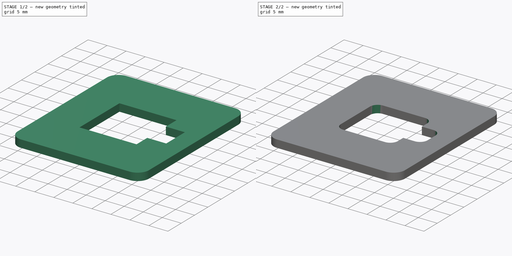
[diagram: build sequence overview — one tinted view per stage of 2, left to right]
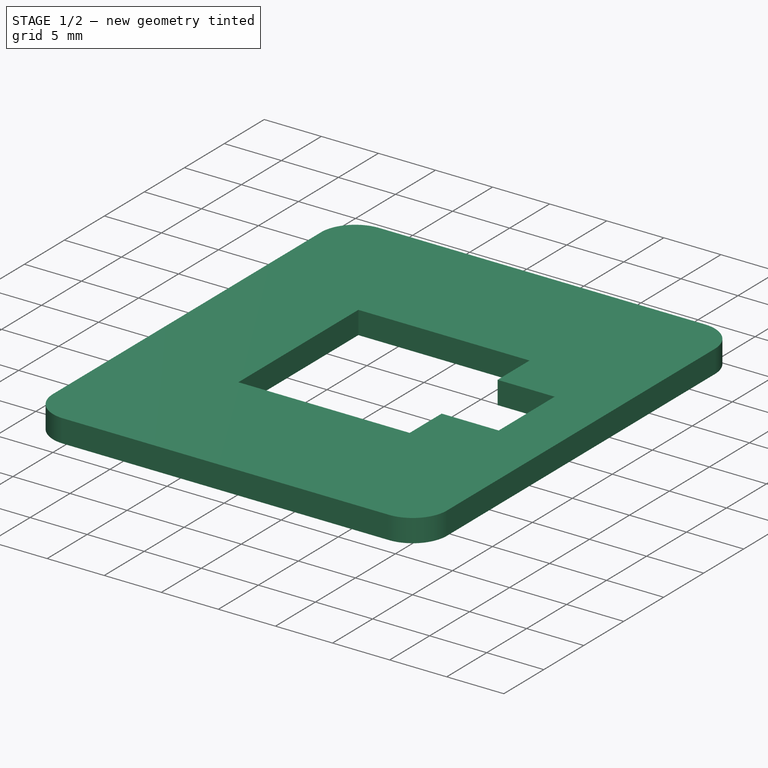
[diagram: stage 1 of 2 — iso view after this stage's code; geometry added in this stage tinted green]
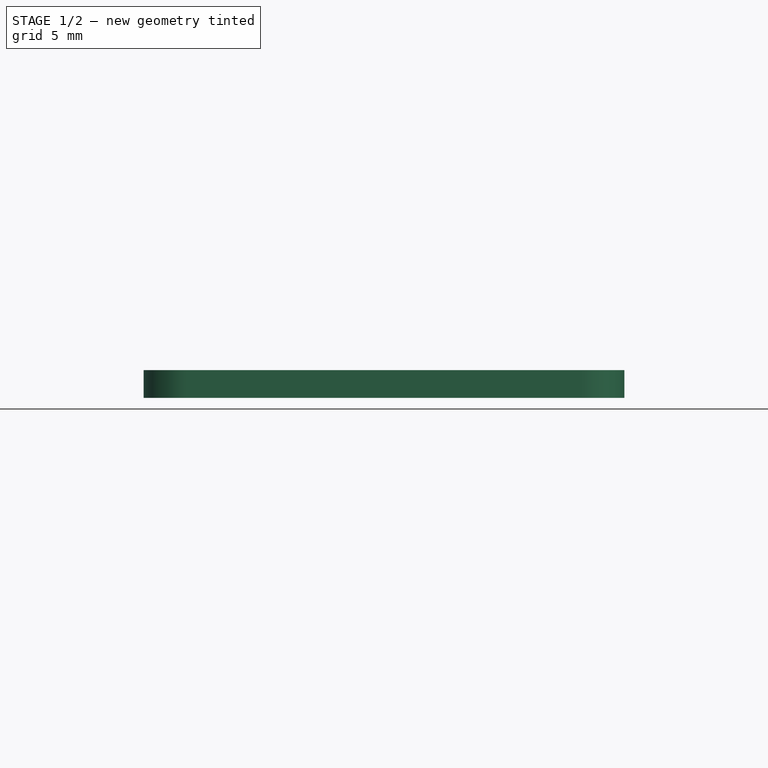
[diagram: stage 1 of 2 — front view after this stage's code; geometry added in this stage tinted green]
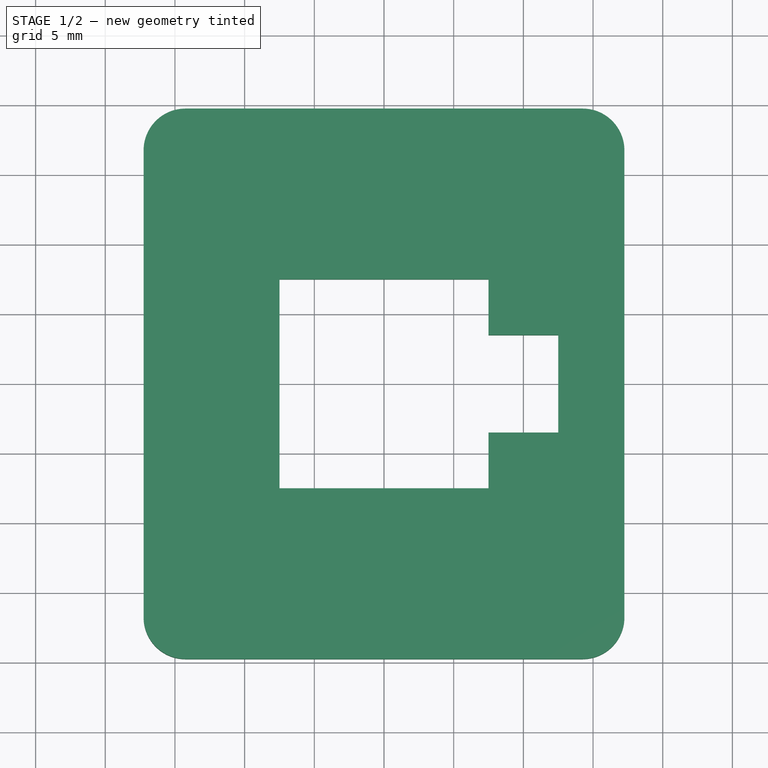
[diagram: stage 1 of 2 — top view after this stage's code; geometry added in this stage tinted green]
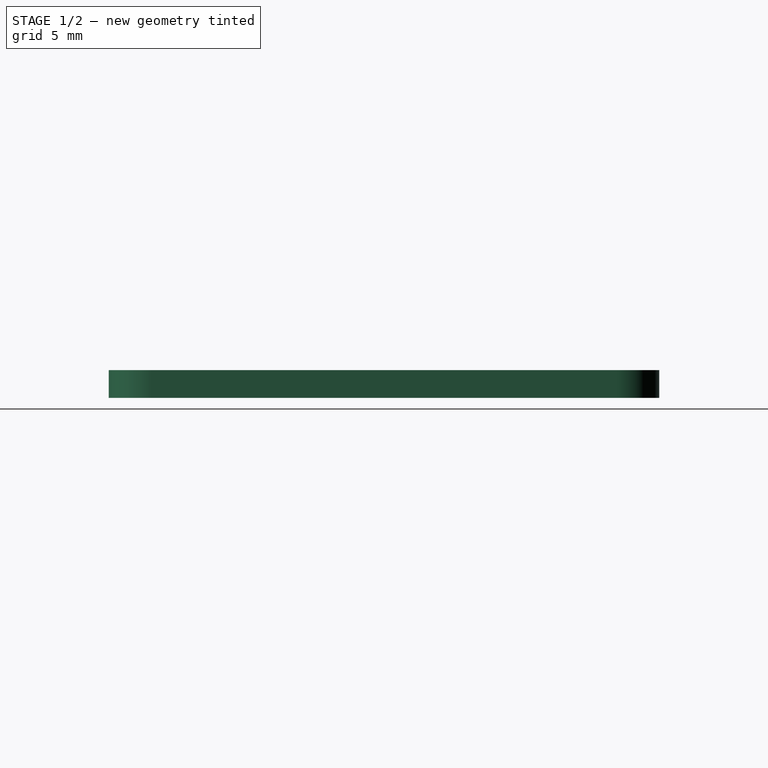
[diagram: stage 1 of 2 — right view after this stage's code; geometry added in this stage tinted green]
FCSTD DOCUMENT  (FreeCAD 0.21R33771 (Git))
Label: Spacer
License: All rights reserved
LicenseURL: http://en.wikipedia.org/wiki/All_rights_reserved
objects: Part::Fillet×2, Sketcher::SketchObject×1, Part::Extrusion×1
note: 4 computed .brp shape members not serialized (recipe doc carries the construction recipe); baked Part::Feature solids carry a one-line shape summary decoded from their .brp

FEATURE [Sketcher::SketchObject] Sketch
  FullyConstrained = true
  sketch-geometry (14):
    g0: LineSegment StartX=-17.25 StartY=-19.75 StartZ=0 EndX=-17.25 EndY=19.75 EndZ=0
    g1: LineSegment StartX=-17.25 StartY=19.75 StartZ=0 EndX=17.25 EndY=19.75 EndZ=0
    g2: LineSegment StartX=17.25 StartY=19.75 StartZ=0 EndX=17.25 EndY=-19.75 EndZ=0
    g3: LineSegment StartX=17.25 StartY=-19.75 StartZ=0 EndX=-17.25 EndY=-19.75 EndZ=0
    g4: GeomPoint X=0 Y=0 Z=0
    g5: LineSegment StartX=-7.5 StartY=-7.5 StartZ=0 EndX=-7.5 EndY=7.5 EndZ=0
    g6: LineSegment StartX=-7.5 StartY=7.5 StartZ=0 EndX=7.5 EndY=7.5 EndZ=0
    g7: LineSegment StartX=7.5 StartY=7.5 StartZ=0 EndX=7.5 EndY=3.5 EndZ=0
    g8: LineSegment StartX=7.5 StartY=-7.5 StartZ=0 EndX=-7.5 EndY=-7.5 EndZ=0
    g9: GeomPoint X=0 Y=0 Z=0
    g10: LineSegment StartX=7.5 StartY=3.5 StartZ=0 EndX=12.5 EndY=3.5 EndZ=0
    g11: LineSegment StartX=12.5 StartY=3.5 StartZ=0 EndX=12.5 EndY=-3.5 EndZ=0
    g12: LineSegment StartX=12.5 StartY=-3.5 StartZ=0 EndX=7.5 EndY=-3.5 EndZ=0
    g13: LineSegment StartX=7.5 StartY=-3.5 StartZ=0 EndX=7.5 EndY=-7.5 EndZ=0
  constraints (37):
    c: Coincident(g0,g1)
    c: Coincident(g1,g2)
    c: Coincident(g2,g3)
    c: Coincident(g3,g0)
    c: Horizontal(g1)
    c: Horizontal(g3)
    c: Vertical(g0)
    c: Vertical(g2)
    c: Symmetric(g1,g0,g4)
    c: PointOnObject(g4,g-2)
    c: Coincident(g5,g6)
    c: Coincident(g6,g7)
    c: Coincident(g13,g8)
    c: Coincident(g8,g5)
    c: Horizontal(g6)
    c: Horizontal(g8)
    c: Vertical(g5)
    c: Vertical(g7)
    c: Symmetric(g6,g5,g9)
    c: Coincident(g9,g-1)
    c: Distance(g1) = 34.5
    c: Distance(g2) = 39.5
    c: PointOnObject(g4,g-1)
    c: Horizontal(g10)
    c: Coincident(g11,g10)
    c: Vertical(g11)
    c: Coincident(g12,g11)
    c: Horizontal(g12)
    c: Coincident(g7,g10)
    c: Coincident(g13,g12)
    c: Distance(g6) = 15
    c: Distance(g5) = 15
    c: Distance(g8) = 15
    c: Vertical(g13)
    c: Equal(g7,g13)
    c: Distance(g7) = 4
    c: Distance(g12) = 5
FEATURE [Part::Extrusion] Extrude
  Base = -> Sketch
  Dir = (0,0,1)
  DirMode = 2
  FaceMakerClass = Part::FaceMakerBullseye
  LengthFwd = 2
  LengthRev = 0
  Solid = true
  Symmetric = false
FEATURE [Part::Fillet] Fillet
  Base = -> Extrude
  Edges = 4 edges r=3: [Edge1,Edge2,Edge5,Edge8]
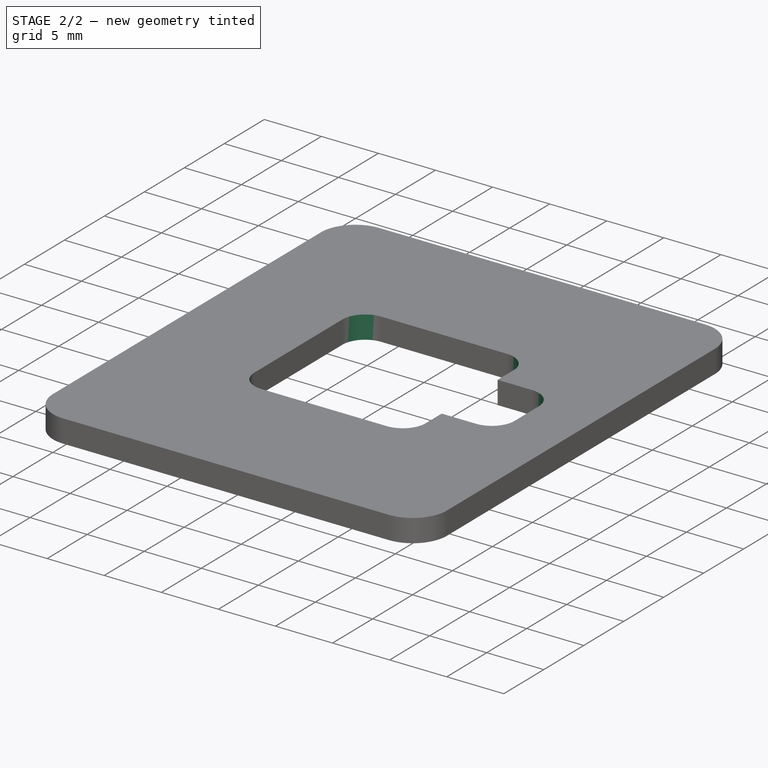
[diagram: stage 2 of 2 — iso view after this stage's code; geometry added in this stage tinted green]
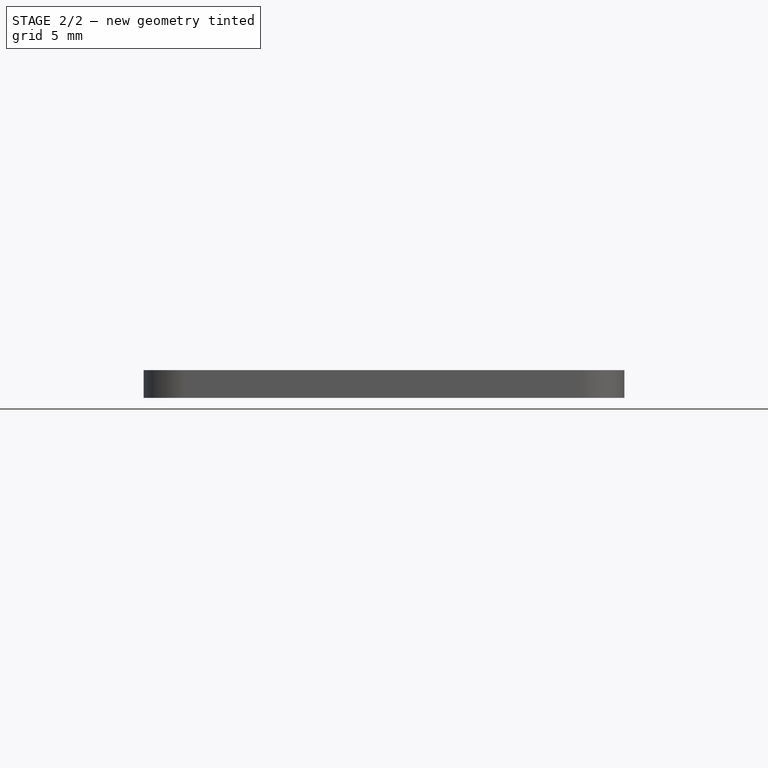
[diagram: stage 2 of 2 — front view after this stage's code; geometry added in this stage tinted green]
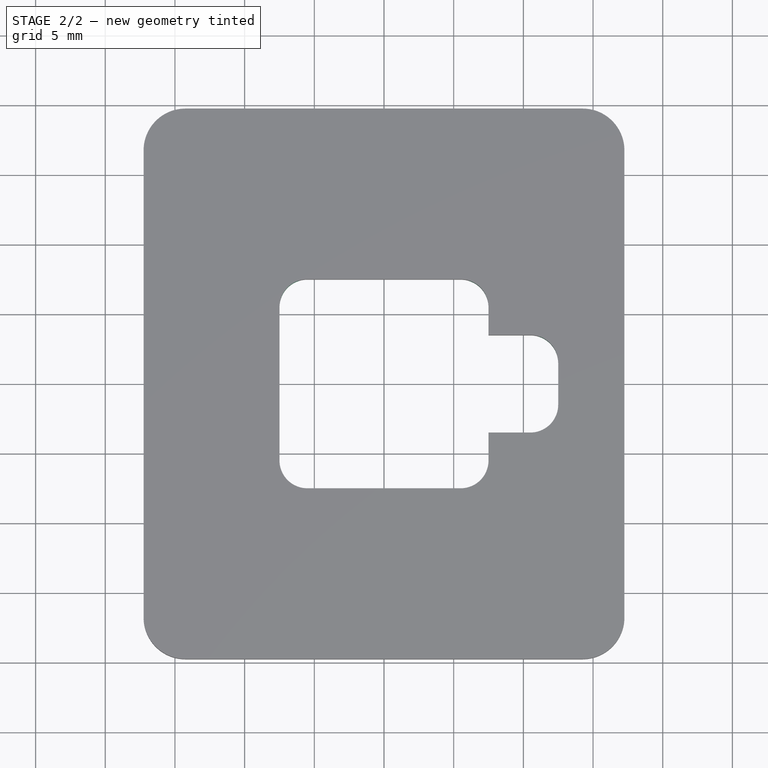
[diagram: stage 2 of 2 — top view after this stage's code; geometry added in this stage tinted green]
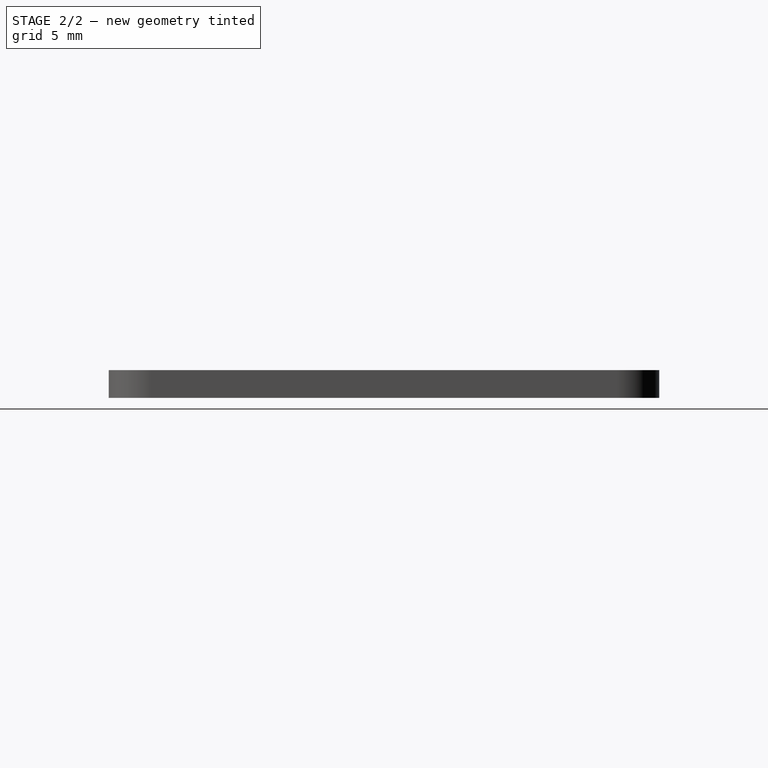
[diagram: stage 2 of 2 — right view after this stage's code; geometry added in this stage tinted green]
FEATURE [Part::Fillet] Fillet001
  Base = -> Fillet
  Edges = 6 edges r=2: [Edge41,Edge42,Edge43,Edge45,Edge46,Edge48]
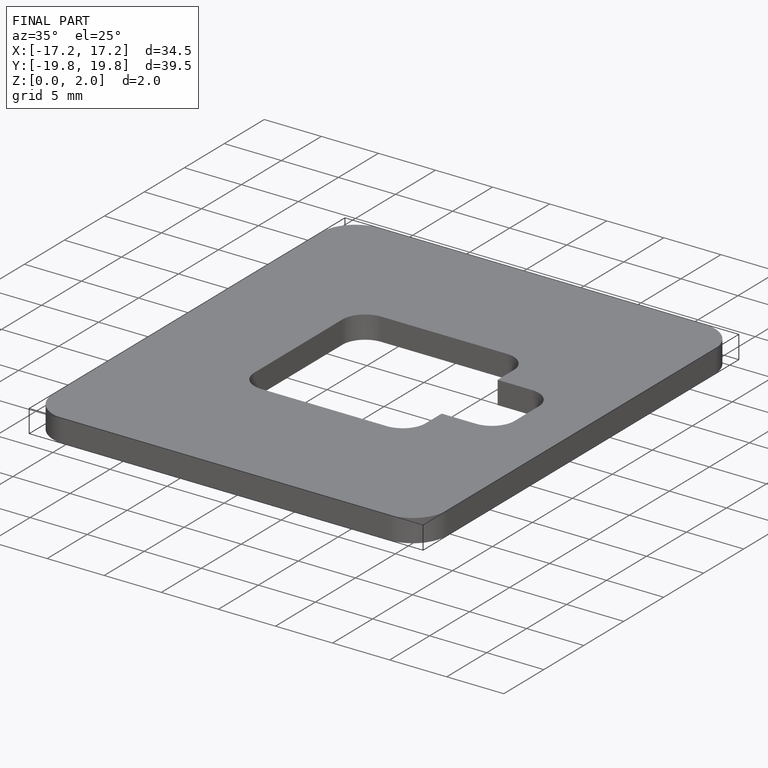
[diagram: finished part — iso view with bounding-box wireframe]
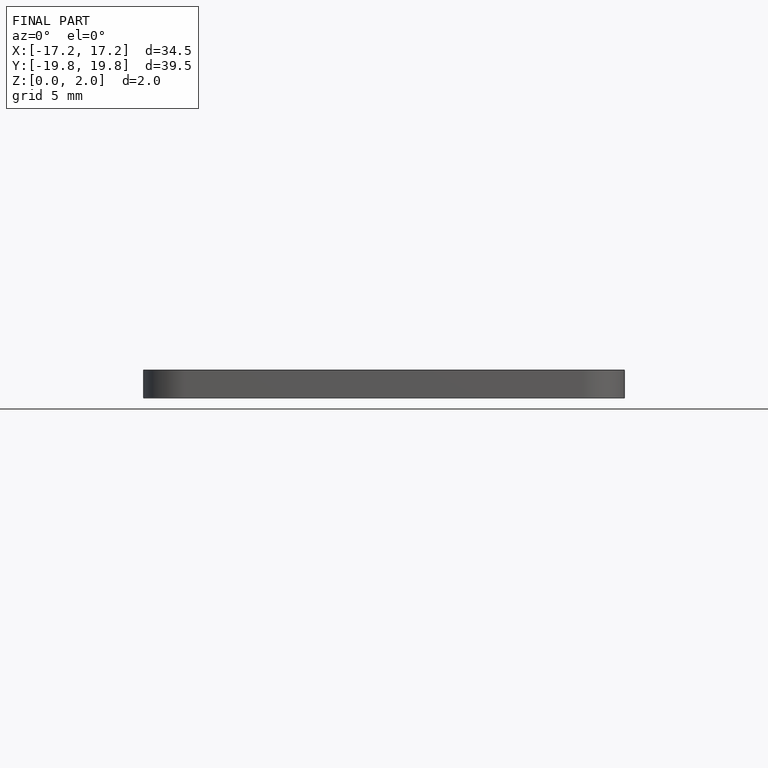
[diagram: finished part — front view with bounding-box wireframe]
